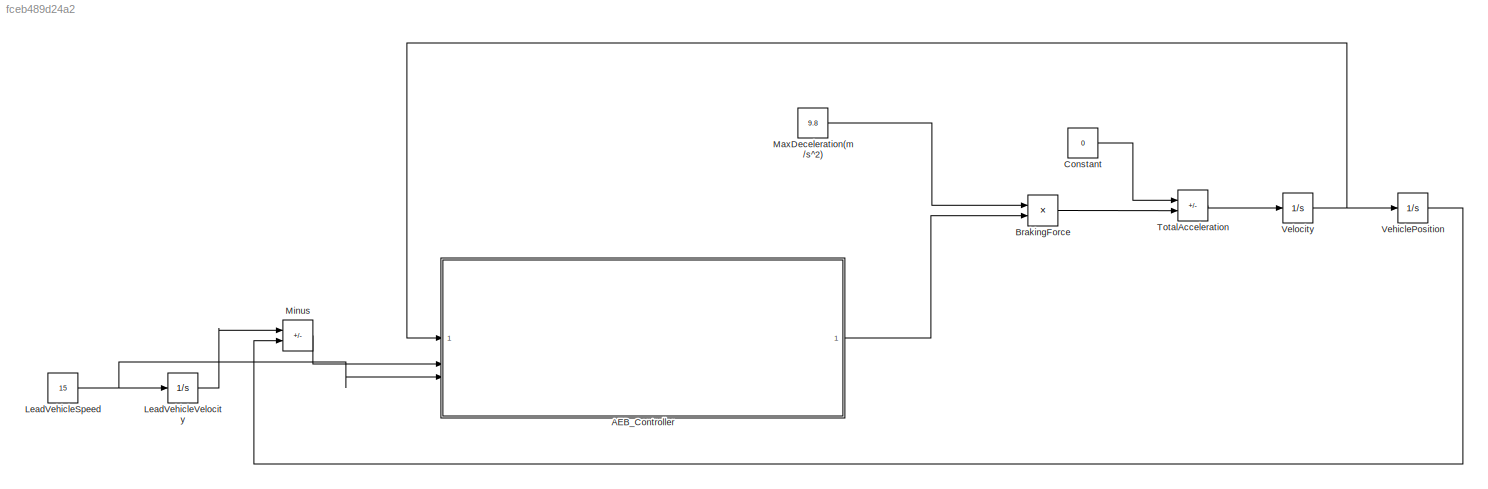
MODEL slx_fceb489d24a2
KIND model
CONFIG AbsTol = auto
CONFIG EnableMultiTasking = off
CONFIG FixedStep = auto
CONFIG MaxStep = auto
CONFIG MinStep = auto
CONFIG RelTol = 1e-3
CONFIG SampleTimeConstraint = Unconstrained
CONFIG SolverName = VariableStepAuto
CONFIG StartTime = 0.0
CONFIG StopTime = 40
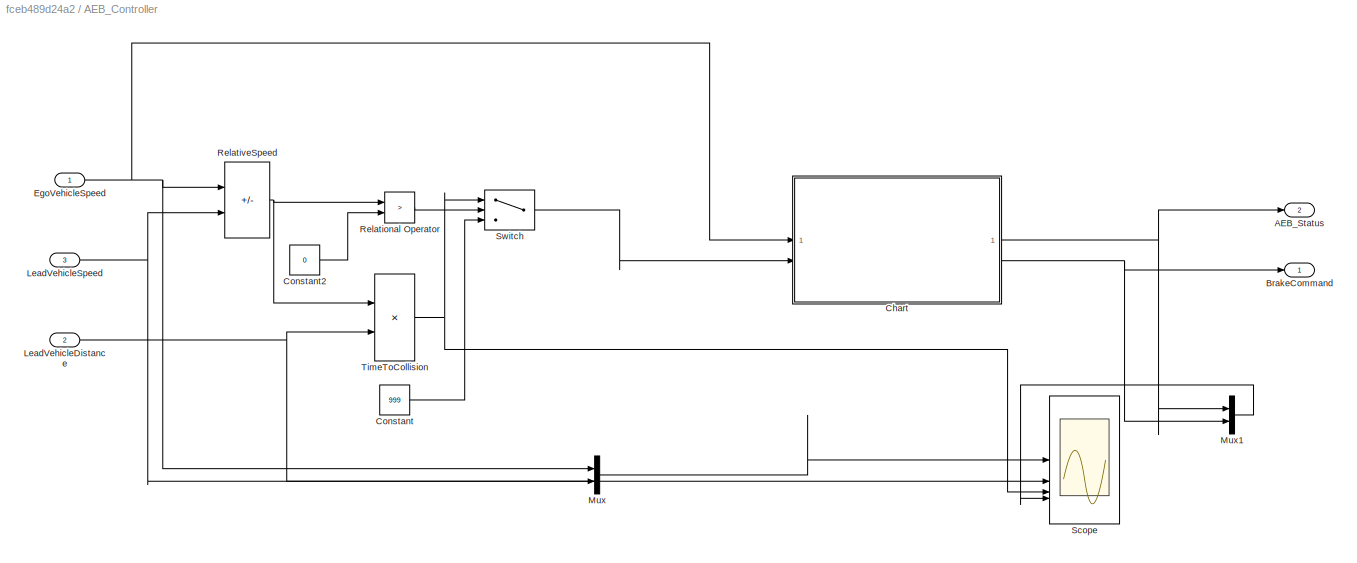
BLOCK [SubSystem] AEB_Controller
BLOCK [Outport] AEB_Controller/AEB_Status
  Port = 2
BLOCK [Outport] AEB_Controller/BrakeCommand
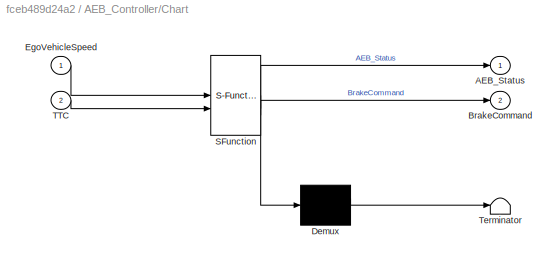
BLOCK [SubSystem] AEB_Controller/Chart
  ErrorFcn = Stateflow.Translate.translate
  PermitHierarchicalResolution = ExplicitOnly
  SFBlockType = Chart
  TreatAsAtomicUnit = on
BLOCK [Demux] AEB_Controller/Chart/ Demux 
  Outputs = 1
BLOCK [S-Function] AEB_Controller/Chart/ SFunction 
  EnableBusSupport = off
  FunctionName = sf_sfun
  PortCounts = [2 3]
  SFcnIsStateOwnerBlock = off
  SFunctionDeploymentMode = off
  Tag = Stateflow S-Function 3
BLOCK [Terminator] AEB_Controller/Chart/ Terminator 
BLOCK [Outport] AEB_Controller/Chart/AEB_Status
BLOCK [Outport] AEB_Controller/Chart/BrakeCommand
  Port = 2
BLOCK [Inport] AEB_Controller/Chart/EgoVehicleSpeed
BLOCK [Inport] AEB_Controller/Chart/TTC
  Port = 2
BLOCK [Constant] AEB_Controller/Constant
  Value = 999
BLOCK [Constant] AEB_Controller/Constant2
  Value = 0
BLOCK [Inport] AEB_Controller/EgoVehicleSpeed
BLOCK [Inport] AEB_Controller/LeadVehicleDistance
  Port = 2
BLOCK [Inport] AEB_Controller/LeadVehicleSpeed
  Port = 3
BLOCK [Mux] AEB_Controller/Mux
  DisplayOption = bar
  Inputs = 2
BLOCK [Mux] AEB_Controller/Mux1
  DisplayOption = bar
  Inputs = 2
BLOCK [RelationalOperator] AEB_Controller/Relational Operator
  InputSameDT = off
  Operator = >
  OutDataTypeStr = boolean
  RndMeth = Simplest
BLOCK [Sum] AEB_Controller/RelativeSpeed
  IconShape = rectangular
  Inputs = +-
BLOCK [Scope] AEB_Controller/Scope
  ActiveDisplayString = 3
  ActiveDisplayYMaximum = 100
  ActiveDisplayYMinimum = 0
  Floating = off
  GraphicalSettings = {"AxesScalingProperties":{"AlignXAxis":"Center","AlignYAxis":"Center","AutoScaleXAxisLimits":false,"AxesScaling":"Manual","AxesScalingNumUpdates":10,"ExpandOnly":true,"ScaleAxesLimitsAtStop":false,"XAxisDataRange":100,"YAxisDataRange":80},"DisplayProperties":{"ColorOrder":["auto","auto","auto","auto","auto","auto","auto","auto","auto","auto","auto","auto","auto","auto","auto","auto","auto","auto",...<+3492ch>
  LayoutDimensionsString = [4,1]
  MultipleDisplayCache = [{"MaxYLimMag":491.85082872928177,"MaxYLimReal":100,"MinYLimMag":0,"MinYLimReal":-1,"PlotAsMagnitudePhase":false,"ShowGrid":true,"ShowLegend":true,"Title":"%<SignalLabel>","YLabel":"velocity(m\/s)"},{"MaxYLimMag":3000,"MaxYLimReal":500,"MinYLimMag":0,"MinYLimReal":0,"PlotAsMagnitudePhase":false,"ShowGrid":true,"ShowLegend":true,"Title":"%<SignalLabel>","YLabel":"distance(m)"},{"MaxYLimMag":100,"Ma...<+339ch>
  NumInputPorts = 4
  ScopeFrameLocation = window
  ShowLegend = on
  ShowTimeAxisLabel = on
  WasSavedAsWebScope = on
  WindowPosition = [1.000000,49.000000,1536.000000,793.000000,]
  YLabel = TTC(secs)
BLOCK [Switch] AEB_Controller/Switch
  Criteria = u2 > Threshold
  InputSameDT = off
  SaturateOnIntegerOverflow = off
BLOCK [Product] AEB_Controller/TimeToCollision
  Inputs = /*
BLOCK [Product] BrakingForce
BLOCK [Constant] Constant
  Value = 0
BLOCK [Constant] LeadVehicleSpeed
  Value = 15
BLOCK [Integrator] LeadVehicleVelocity
  InitialCondition = 100
BLOCK [Constant] MaxDeceleration(m//s^2)
  Value = 9.8
BLOCK [Sum] Minus
  IconShape = rectangular
  Inputs = +-
BLOCK [Sum] TotalAcceleration
  IconShape = rectangular
  Inputs = +-
BLOCK [Integrator] VehiclePosition
BLOCK [Integrator] Velocity
  InitialCondition = 25
NET AEB_Controller/Chart:1 -> AEB_Controller/AEB_Status:1, AEB_Controller/Mux1:1
NET AEB_Controller/Chart:2 -> AEB_Controller/BrakeCommand:1, AEB_Controller/Mux1:2
LINE AEB_Controller/Constant2:1 -> AEB_Controller/Relational Operator:2
LINE AEB_Controller/Constant:1 -> AEB_Controller/Switch:3
NET AEB_Controller/EgoVehicleSpeed:1 -> AEB_Controller/Chart:1, AEB_Controller/Mux:1, AEB_Controller/RelativeSpeed:1
NET AEB_Controller/LeadVehicleDistance:1 -> AEB_Controller/Scope:2, AEB_Controller/TimeToCollision:2
NET AEB_Controller/LeadVehicleSpeed:1 -> AEB_Controller/Mux:2, AEB_Controller/RelativeSpeed:2
LINE AEB_Controller/Mux1:1 -> AEB_Controller/Scope:4
LINE AEB_Controller/Mux:1 -> AEB_Controller/Scope:1
LINE AEB_Controller/Relational Operator:1 -> AEB_Controller/Switch:2
NET AEB_Controller/RelativeSpeed:1 -> AEB_Controller/Relational Operator:1, AEB_Controller/TimeToCollision:1
LINE AEB_Controller/Switch:1 -> AEB_Controller/Chart:2
NET AEB_Controller/TimeToCollision:1 -> AEB_Controller/Scope:3, AEB_Controller/Switch:1
LINE AEB_Controller:1 -> BrakingForce:2
LINE BrakingForce:1 -> TotalAcceleration:2
LINE Constant:1 -> TotalAcceleration:1
NET LeadVehicleSpeed:1 -> AEB_Controller:3, LeadVehicleVelocity:1
LINE LeadVehicleVelocity:1 -> Minus:1
LINE MaxDeceleration(m//s^2):1 -> BrakingForce:1
LINE Minus:1 -> AEB_Controller:2
LINE TotalAcceleration:1 -> Velocity:1
LINE VehiclePosition:1 -> Minus:2
NET Velocity:1 -> AEB_Controller:1, VehiclePosition:1
note: NET lines group one-source signal fan-out (src -> all destinations, sorted); 1:1 wires keep LINE
CHART AEB_Controller/Chart states=3 transitions=4
  STATE_LABEL 'Safe\nentry: BrakeCommand = 0;\n AEB_Status = 0;'
  STATE_LABEL 'Warning\nentry: BrakeCommand = 0;\n AEB_Status = 1;'
  STATE_LABEL 'Braking\nentry: BrakeCommand = 1;\n AEB_Status = 2;'
CHART  states=0 transitions=0
